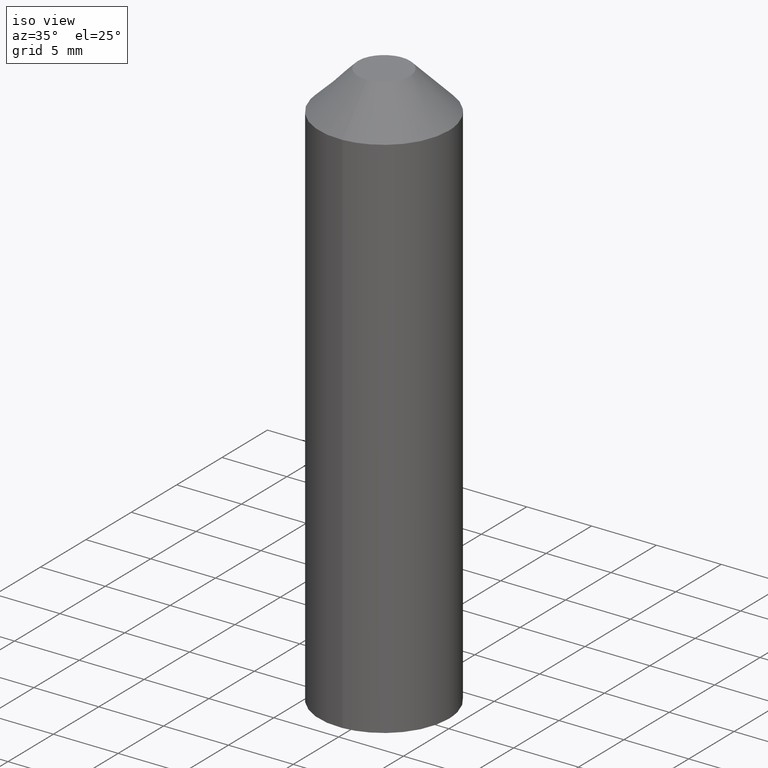
[diagram: clean part render]
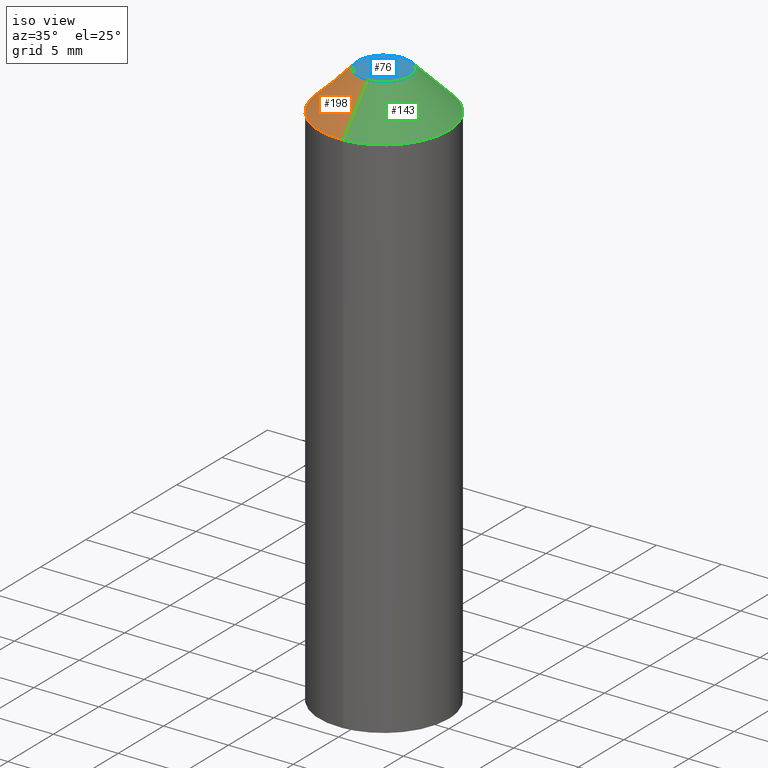
[diagram: same view with three faces highlighted in distinct colors, each labeled with its STEP entity id]
A machine part, iso view with three faces highlighted in distinct colors.
Their STEP definitions:

[orange] entity #198 — the highlighted face is a freeform B-spline surface patch.
#10=CARTESIAN_POINT('',(0.122097079354286,-1.996269596863963,43.999999999962427));
#11=VERTEX_POINT('',#10);
#12=CARTESIAN_POINT('',(-2.0,0.0,44.0));
#13=VERTEX_POINT('',#12);
#14=CARTESIAN_POINT('',(0.122097079354286,-1.996269596863963,43.999999999962427));
#15=CARTESIAN_POINT('',(0.061105526740973,-2.000000000036956,43.999999999962967));
#16=CARTESIAN_POINT('',(2.224938E-012,-2.000000000036383,43.999999999963542));
#17=CARTESIAN_POINT('',(-1.999999999998922,-2.000000000017635,43.999999999982329));
#18=CARTESIAN_POINT('',(-2.0,0.0,44.0));
#26=(BOUNDED_CURVE()B_SPLINE_CURVE(2,(#14,#15,#16,#17,#18),.UNSPECIFIED.,.F.,.U.)B_SPLINE_CURVE_WITH_KNOTS((3,2,3),(0.739332962217570,0.750000000000000,1.0),.UNSPECIFIED.)CURVE()GEOMETRIC_REPRESENTATION_ITEM()RATIONAL_B_SPLINE_CURVE((0.976072041620911,0.987502787874797,1.0,0.707106781186548,1.0))REPRESENTATION_ITEM(''));
#27=EDGE_CURVE('',#11,#13,#26,.T.);
#44=CARTESIAN_POINT('',(-0.122097079354286,1.996269596863963,43.999999999962427));
#45=VERTEX_POINT('',#44);
#61=CARTESIAN_POINT('',(-2.0,0.0,44.0));
#62=CARTESIAN_POINT('',(-2.000000000001146,1.881412133563603,43.999999999981220));
#63=CARTESIAN_POINT('',(-0.122097079354286,1.996269596863963,43.999999999962427));
#71=(BOUNDED_CURVE()B_SPLINE_CURVE(2,(#61,#62,#63),.UNSPECIFIED.,.F.,.U.)B_SPLINE_CURVE_WITH_KNOTS((3,3),(0.0,0.239332962217570),.UNSPECIFIED.)CURVE()GEOMETRIC_REPRESENTATION_ITEM()RATIONAL_B_SPLINE_CURVE((1.0,0.719603993311751,0.976072041620911))REPRESENTATION_ITEM(''));
#72=EDGE_CURVE('',#13,#45,#71,.T.);
#95=CARTESIAN_POINT('',(-0.305242697718337,4.990673992112464,40.999999999988383));
#96=VERTEX_POINT('',#95);
#114=CARTESIAN_POINT('',(-0.122097079354286,1.996269596863963,43.999999999962427));
#115=CARTESIAN_POINT('',(-0.305242697762389,4.990673992115594,40.999999999988383));
#116=QUASI_UNIFORM_CURVE('',1,(#114,#115),.UNSPECIFIED.,.F.,.U.);
#117=EDGE_CURVE('',#45,#96,#116,.T.);
#121=CARTESIAN_POINT('',(0.305242697718337,-4.990673992112464,40.999999999988383));
#122=VERTEX_POINT('',#121);
#123=CARTESIAN_POINT('',(0.122097079354286,-1.996269596863963,43.999999999962427));
#124=CARTESIAN_POINT('',(0.305242697762388,-4.990673992115595,40.999999999988383));
#125=QUASI_UNIFORM_CURVE('',1,(#123,#124),.UNSPECIFIED.,.F.,.U.);
#126=EDGE_CURVE('',#11,#122,#125,.T.);
#144=CARTESIAN_POINT('',(0.117518438604599,-1.921409486962084,44.075000000000010));
#145=CARTESIAN_POINT('',(-1.803891048357485,-2.038927925566683,44.075000000000010));
#146=CARTESIAN_POINT('',(-1.921409486962084,-0.117518438604599,44.075000000000010));
#147=CARTESIAN_POINT('',(-2.038927925566683,1.803891048357485,44.075000000000010));
#148=CARTESIAN_POINT('',(-0.117518438604599,1.921409486962084,44.075000000000010));
#149=CARTESIAN_POINT('',(0.309935804151027,-5.067405604738020,40.923124999999992));
#150=CARTESIAN_POINT('',(-4.757469800586993,-5.377341408889047,40.923124999999992));
#151=CARTESIAN_POINT('',(-5.067405604738020,-0.309935804151027,40.923124999999992));
#152=CARTESIAN_POINT('',(-5.377341408889047,4.757469800586993,40.923124999999992));
#153=CARTESIAN_POINT('',(-0.309935804151027,5.067405604738020,40.923124999999992));
#161=(BOUNDED_SURFACE()B_SPLINE_SURFACE(2,1,((#144,#149),(#145,#150),(#146,#151),(#147,#152),(#148,#153)),.UNSPECIFIED.,.F.,.F.,.U.)B_SPLINE_SURFACE_WITH_KNOTS((3,2,3),(2,2),(0.0,8.411641917891634,16.823283835783268),(0.0,4.457424371904722),.UNSPECIFIED.)GEOMETRIC_REPRESENTATION_ITEM()RATIONAL_B_SPLINE_SURFACE(((1.0,1.0),(0.707106781186548,0.707106781186548),(1.0,1.0),(0.707106781186548,0.707106781186548),(1.0,1.0)))REPRESENTATION_ITEM('')SURFACE());
#162=CARTESIAN_POINT('',(-5.0,0.0,41.0));
#163=VERTEX_POINT('',#162);
#164=CARTESIAN_POINT('',(-5.0,0.0,41.0));
#165=CARTESIAN_POINT('',(-4.999999999978329,4.703530334450193,40.999999999994188));
#166=CARTESIAN_POINT('',(-0.305242697718337,4.990673992112465,40.999999999988383));
#174=(BOUNDED_CURVE()B_SPLINE_CURVE(2,(#164,#165,#166),.UNSPECIFIED.,.F.,.U.)B_SPLINE_CURVE_WITH_KNOTS((3,3),(0.0,0.239332962238947),.UNSPECIFIED.)CURVE()GEOMETRIC_REPRESENTATION_ITEM()RATIONAL_B_SPLINE_CURVE((1.0,0.719603993286706,0.976072041666726))REPRESENTATION_ITEM(''));
#175=EDGE_CURVE('',#163,#96,#174,.T.);
#176=ORIENTED_EDGE('',*,*,#175,.F.);
#177=CARTESIAN_POINT('',(0.305242697718336,-4.990673992112466,40.999999999988376));
#178=CARTESIAN_POINT('',(0.152763816494045,-5.000000000008352,40.999999999988532));
#179=CARTESIAN_POINT('',(-4.205763E-011,-5.000000000008224,40.999999999988717));
#180=CARTESIAN_POINT('',(-5.000000000020386,-5.000000000003985,40.999999999994543));
#181=CARTESIAN_POINT('',(-5.0,0.0,41.0));
#189=(BOUNDED_CURVE()B_SPLINE_CURVE(2,(#177,#178,#179,#180,#181),.UNSPECIFIED.,.F.,.U.)B_SPLINE_CURVE_WITH_KNOTS((3,2,3),(0.739332962238947,0.750000000000000,1.0),.UNSPECIFIED.)CURVE()GEOMETRIC_REPRESENTATION_ITEM()RATIONAL_B_SPLINE_CURVE((0.976072041666726,0.987502787899842,1.0,0.707106781186548,1.0))REPRESENTATION_ITEM(''));
#190=EDGE_CURVE('',#122,#163,#189,.T.);
#191=ORIENTED_EDGE('',*,*,#190,.F.);
#192=ORIENTED_EDGE('',*,*,#126,.F.);
#193=ORIENTED_EDGE('',*,*,#27,.T.);
#194=ORIENTED_EDGE('',*,*,#72,.T.);
#195=ORIENTED_EDGE('',*,*,#117,.T.);
#196=EDGE_LOOP('',(#176,#191,#192,#193,#194,#195));
#197=FACE_OUTER_BOUND('',#196,.T.);
#198=ADVANCED_FACE('',(#197),#161,.T.);

[blue] entity #76 — the highlighted face is a freeform B-spline surface patch.
#5=CARTESIAN_POINT('',(2.199799992247224,-2.199750737069184,44.0));
#6=CARTESIAN_POINT('',(-2.199800099535584,-2.199750737069184,44.0));
#7=CARTESIAN_POINT('',(2.199799992247224,2.199750701306397,44.0));
#8=CARTESIAN_POINT('',(-2.199800099535584,2.199750701306397,44.0));
#9=B_SPLINE_SURFACE_WITH_KNOTS('',1,1,((#5,#7),(#6,#8)),.UNSPECIFIED.,.F.,.F.,.U.,(2,2),(2,2),(0.0,4.399600091782808),(0.0,4.399501438375581),.UNSPECIFIED.);
#10=CARTESIAN_POINT('',(0.122097079354286,-1.996269596863963,43.999999999962427));
#11=VERTEX_POINT('',#10);
#12=CARTESIAN_POINT('',(-2.0,0.0,44.0));
#13=VERTEX_POINT('',#12);
#14=CARTESIAN_POINT('',(0.122097079354286,-1.996269596863963,43.999999999962427));
#15=CARTESIAN_POINT('',(0.061105526740973,-2.000000000036956,43.999999999962967));
#16=CARTESIAN_POINT('',(2.224938E-012,-2.000000000036383,43.999999999963542));
#17=CARTESIAN_POINT('',(-1.999999999998922,-2.000000000017635,43.999999999982329));
#18=CARTESIAN_POINT('',(-2.0,0.0,44.0));
#26=(BOUNDED_CURVE()B_SPLINE_CURVE(2,(#14,#15,#16,#17,#18),.UNSPECIFIED.,.F.,.U.)B_SPLINE_CURVE_WITH_KNOTS((3,2,3),(0.739332962217570,0.750000000000000,1.0),.UNSPECIFIED.)CURVE()GEOMETRIC_REPRESENTATION_ITEM()RATIONAL_B_SPLINE_CURVE((0.976072041620911,0.987502787874797,1.0,0.707106781186548,1.0))REPRESENTATION_ITEM(''));
#27=EDGE_CURVE('',#11,#13,#26,.T.);
#28=ORIENTED_EDGE('',*,*,#27,.F.);
#29=CARTESIAN_POINT('',(2.0,0.0,44.0));
#30=VERTEX_POINT('',#29);
#31=CARTESIAN_POINT('',(2.0,0.0,44.0));
#32=CARTESIAN_POINT('',(2.000000000001146,-1.881412133563603,43.999999999981220));
#33=CARTESIAN_POINT('',(0.122097079354286,-1.996269596863963,43.999999999962427));
#41=(BOUNDED_CURVE()B_SPLINE_CURVE(2,(#31,#32,#33),.UNSPECIFIED.,.F.,.U.)B_SPLINE_CURVE_WITH_KNOTS((3,3),(0.500000000000000,0.739332962217570),.UNSPECIFIED.)CURVE()GEOMETRIC_REPRESENTATION_ITEM()RATIONAL_B_SPLINE_CURVE((1.0,0.719603993311751,0.976072041620911))REPRESENTATION_ITEM(''));
#42=EDGE_CURVE('',#30,#11,#41,.T.);
#43=ORIENTED_EDGE('',*,*,#42,.F.);
#44=CARTESIAN_POINT('',(-0.122097079354286,1.996269596863963,43.999999999962427));
#45=VERTEX_POINT('',#44);
#46=CARTESIAN_POINT('',(-0.122097079354286,1.996269596863963,43.999999999962427));
#47=CARTESIAN_POINT('',(-0.061105526740973,2.000000000036956,43.999999999962967));
#48=CARTESIAN_POINT('',(-2.225261E-012,2.000000000036383,43.999999999963549));
#49=CARTESIAN_POINT('',(1.999999999998921,2.000000000017635,43.999999999982329));
#50=CARTESIAN_POINT('',(2.0,0.0,44.0));
#58=(BOUNDED_CURVE()B_SPLINE_CURVE(2,(#46,#47,#48,#49,#50),.UNSPECIFIED.,.F.,.U.)B_SPLINE_CURVE_WITH_KNOTS((3,2,3),(0.239332962217570,0.250000000000000,0.500000000000000),.UNSPECIFIED.)CURVE()GEOMETRIC_REPRESENTATION_ITEM()RATIONAL_B_SPLINE_CURVE((0.976072041620911,0.987502787874797,1.0,0.707106781186548,1.0))REPRESENTATION_ITEM(''));
#59=EDGE_CURVE('',#45,#30,#58,.T.);
#60=ORIENTED_EDGE('',*,*,#59,.F.);
#61=CARTESIAN_POINT('',(-2.0,0.0,44.0));
#62=CARTESIAN_POINT('',(-2.000000000001146,1.881412133563603,43.999999999981220));
#63=CARTESIAN_POINT('',(-0.122097079354286,1.996269596863963,43.999999999962427));
#71=(BOUNDED_CURVE()B_SPLINE_CURVE(2,(#61,#62,#63),.UNSPECIFIED.,.F.,.U.)B_SPLINE_CURVE_WITH_KNOTS((3,3),(0.0,0.239332962217570),.UNSPECIFIED.)CURVE()GEOMETRIC_REPRESENTATION_ITEM()RATIONAL_B_SPLINE_CURVE((1.0,0.719603993311751,0.976072041620911))REPRESENTATION_ITEM(''));
#72=EDGE_CURVE('',#13,#45,#71,.T.);
#73=ORIENTED_EDGE('',*,*,#72,.F.);
#74=EDGE_LOOP('',(#28,#43,#60,#73));
#75=FACE_OUTER_BOUND('',#74,.T.);
#76=ADVANCED_FACE('',(#75),#9,.F.);

[green] entity #143 — the highlighted face is a freeform B-spline surface patch.
#10=CARTESIAN_POINT('',(0.122097079354286,-1.996269596863963,43.999999999962427));
#11=VERTEX_POINT('',#10);
#29=CARTESIAN_POINT('',(2.0,0.0,44.0));
#30=VERTEX_POINT('',#29);
#31=CARTESIAN_POINT('',(2.0,0.0,44.0));
#32=CARTESIAN_POINT('',(2.000000000001146,-1.881412133563603,43.999999999981220));
#33=CARTESIAN_POINT('',(0.122097079354286,-1.996269596863963,43.999999999962427));
#41=(BOUNDED_CURVE()B_SPLINE_CURVE(2,(#31,#32,#33),.UNSPECIFIED.,.F.,.U.)B_SPLINE_CURVE_WITH_KNOTS((3,3),(0.500000000000000,0.739332962217570),.UNSPECIFIED.)CURVE()GEOMETRIC_REPRESENTATION_ITEM()RATIONAL_B_SPLINE_CURVE((1.0,0.719603993311751,0.976072041620911))REPRESENTATION_ITEM(''));
#42=EDGE_CURVE('',#30,#11,#41,.T.);
#44=CARTESIAN_POINT('',(-0.122097079354286,1.996269596863963,43.999999999962427));
#45=VERTEX_POINT('',#44);
#46=CARTESIAN_POINT('',(-0.122097079354286,1.996269596863963,43.999999999962427));
#47=CARTESIAN_POINT('',(-0.061105526740973,2.000000000036956,43.999999999962967));
#48=CARTESIAN_POINT('',(-2.225261E-012,2.000000000036383,43.999999999963549));
#49=CARTESIAN_POINT('',(1.999999999998921,2.000000000017635,43.999999999982329));
#50=CARTESIAN_POINT('',(2.0,0.0,44.0));
#58=(BOUNDED_CURVE()B_SPLINE_CURVE(2,(#46,#47,#48,#49,#50),.UNSPECIFIED.,.F.,.U.)B_SPLINE_CURVE_WITH_KNOTS((3,2,3),(0.239332962217570,0.250000000000000,0.500000000000000),.UNSPECIFIED.)CURVE()GEOMETRIC_REPRESENTATION_ITEM()RATIONAL_B_SPLINE_CURVE((0.976072041620911,0.987502787874797,1.0,0.707106781186548,1.0))REPRESENTATION_ITEM(''));
#59=EDGE_CURVE('',#45,#30,#58,.T.);
#77=CARTESIAN_POINT('',(-0.117518438604599,1.921409486962084,44.075000000000010));
#78=CARTESIAN_POINT('',(1.803891048357485,2.038927925566683,44.075000000000010));
#79=CARTESIAN_POINT('',(1.921409486962084,0.117518438604599,44.075000000000010));
#80=CARTESIAN_POINT('',(2.038927925566683,-1.803891048357485,44.075000000000010));
#81=CARTESIAN_POINT('',(0.117518438604599,-1.921409486962084,44.075000000000010));
#82=CARTESIAN_POINT('',(-0.309935804151027,5.067405604738020,40.923124999999992));
#83=CARTESIAN_POINT('',(4.757469800586993,5.377341408889047,40.923124999999992));
#84=CARTESIAN_POINT('',(5.067405604738020,0.309935804151027,40.923124999999992));
#85=CARTESIAN_POINT('',(5.377341408889047,-4.757469800586993,40.923124999999992));
#86=CARTESIAN_POINT('',(0.309935804151027,-5.067405604738020,40.923124999999992));
#94=(BOUNDED_SURFACE()B_SPLINE_SURFACE(2,1,((#77,#82),(#78,#83),(#79,#84),(#80,#85),(#81,#86)),.UNSPECIFIED.,.F.,.F.,.U.)B_SPLINE_SURFACE_WITH_KNOTS((3,2,3),(2,2),(0.0,8.411641917891634,16.823283835783268),(0.0,4.457424371904722),.UNSPECIFIED.)GEOMETRIC_REPRESENTATION_ITEM()RATIONAL_B_SPLINE_SURFACE(((1.0,1.0),(0.707106781186548,0.707106781186548),(1.0,1.0),(0.707106781186548,0.707106781186548),(1.0,1.0)))REPRESENTATION_ITEM('')SURFACE());
#95=CARTESIAN_POINT('',(-0.305242697718337,4.990673992112464,40.999999999988383));
#96=VERTEX_POINT('',#95);
#97=CARTESIAN_POINT('',(5.0,0.0,41.0));
#98=VERTEX_POINT('',#97);
#99=CARTESIAN_POINT('',(-0.305242697718337,4.990673992112465,40.999999999988383));
#100=CARTESIAN_POINT('',(-0.152763816494045,5.000000000008354,40.999999999988546));
#101=CARTESIAN_POINT('',(4.205639E-011,5.000000000008225,40.999999999988717));
#102=CARTESIAN_POINT('',(5.000000000020386,5.000000000003987,40.999999999994543));
#103=CARTESIAN_POINT('',(5.0,0.0,41.0));
#111=(BOUNDED_CURVE()B_SPLINE_CURVE(2,(#99,#100,#101,#102,#103),.UNSPECIFIED.,.F.,.U.)B_SPLINE_CURVE_WITH_KNOTS((3,2,3),(0.239332962238947,0.250000000000000,0.500000000000000),.UNSPECIFIED.)CURVE()GEOMETRIC_REPRESENTATION_ITEM()RATIONAL_B_SPLINE_CURVE((0.976072041666726,0.987502787899842,1.0,0.707106781186548,1.0))REPRESENTATION_ITEM(''));
#112=EDGE_CURVE('',#96,#98,#111,.T.);
#113=ORIENTED_EDGE('',*,*,#112,.F.);
#114=CARTESIAN_POINT('',(-0.122097079354286,1.996269596863963,43.999999999962427));
#115=CARTESIAN_POINT('',(-0.305242697762389,4.990673992115594,40.999999999988383));
#116=QUASI_UNIFORM_CURVE('',1,(#114,#115),.UNSPECIFIED.,.F.,.U.);
#117=EDGE_CURVE('',#45,#96,#116,.T.);
#118=ORIENTED_EDGE('',*,*,#117,.F.);
#119=ORIENTED_EDGE('',*,*,#59,.T.);
#120=ORIENTED_EDGE('',*,*,#42,.T.);
#121=CARTESIAN_POINT('',(0.305242697718337,-4.990673992112464,40.999999999988383));
#122=VERTEX_POINT('',#121);
#123=CARTESIAN_POINT('',(0.122097079354286,-1.996269596863963,43.999999999962427));
#124=CARTESIAN_POINT('',(0.305242697762388,-4.990673992115595,40.999999999988383));
#125=QUASI_UNIFORM_CURVE('',1,(#123,#124),.UNSPECIFIED.,.F.,.U.);
#126=EDGE_CURVE('',#11,#122,#125,.T.);
#127=ORIENTED_EDGE('',*,*,#126,.T.);
#128=CARTESIAN_POINT('',(5.0,0.0,41.0));
#129=CARTESIAN_POINT('',(4.999999999978329,-4.703530334450192,40.999999999994202));
#130=CARTESIAN_POINT('',(0.305242697718336,-4.990673992112466,40.999999999988376));
#138=(BOUNDED_CURVE()B_SPLINE_CURVE(2,(#128,#129,#130),.UNSPECIFIED.,.F.,.U.)B_SPLINE_CURVE_WITH_KNOTS((3,3),(0.500000000000000,0.739332962238947),.UNSPECIFIED.)CURVE()GEOMETRIC_REPRESENTATION_ITEM()RATIONAL_B_SPLINE_CURVE((1.0,0.719603993286706,0.976072041666726))REPRESENTATION_ITEM(''));
#139=EDGE_CURVE('',#98,#122,#138,.T.);
#140=ORIENTED_EDGE('',*,*,#139,.F.);
#141=EDGE_LOOP('',(#113,#118,#119,#120,#127,#140));
#142=FACE_OUTER_BOUND('',#141,.T.);
#143=ADVANCED_FACE('',(#142),#94,.T.);